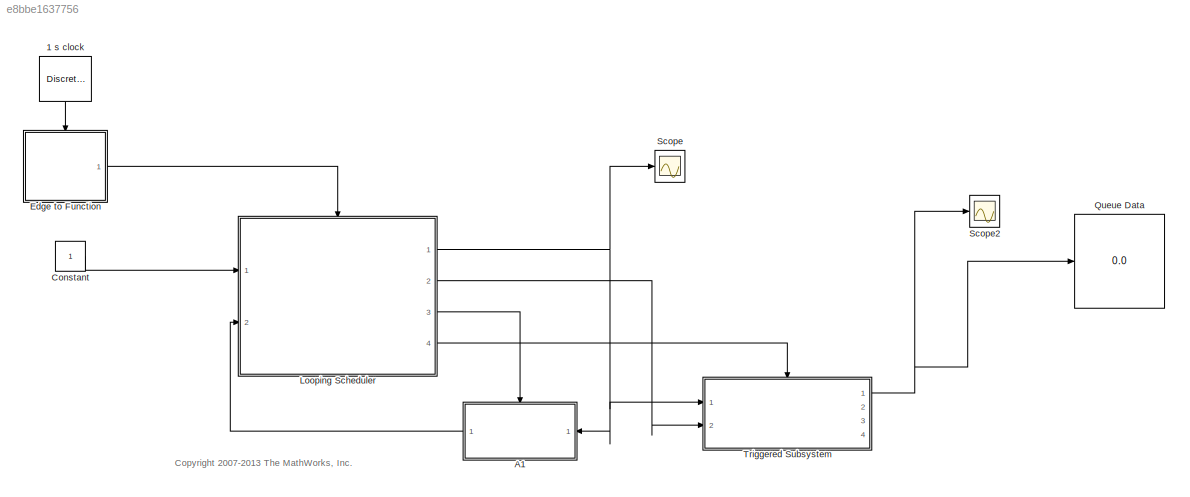
MODEL slx_e8bbe1637756
KIND model
CONFIG AbsTol = auto
CONFIG EnableMultiTasking = on
CONFIG FixedStep = auto
CONFIG MaxStep = auto
CONFIG MinStep = auto
CONFIG RelTol = 1e-3
CONFIG SampleTimeConstraint = Unconstrained
CONFIG Solver = FixedStepDiscrete
CONFIG SolverName = FixedStepDiscrete
CONFIG StartTime = 0.0
CONFIG StopTime = 10
WORKSPACE source: MAT-file member
WORKSPACE deltat = 0.001
BLOCK [DiscretePulseGenerator] 1 s clock
  Period = 1
  Ports = [0, 1]
  PulseType = Time based
  PulseWidth = 10
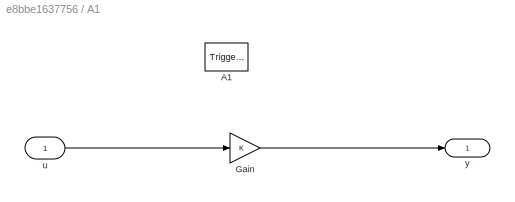
BLOCK [SubSystem] A1
  Ports = [1, 1, 0, 1]
  RequestExecContextInheritance = off
  TreatAsAtomicUnit = on
BLOCK [TriggerPort] A1/A1
  Ports = []
  StatesWhenEnabling = held
  TriggerType = function-call
  VariantControl = Variant
BLOCK [Gain] A1/Gain
  OutDataTypeStr = Inherit: Inherit via internal rule
  ParamDataTypeStr = Inherit: Inherit via internal rule
  SaturateOnIntegerOverflow = off
BLOCK [Inport] A1/u
  IconDisplay = Port number
BLOCK [Outport] A1/y
  IconDisplay = Port number
BLOCK [Constant] Constant
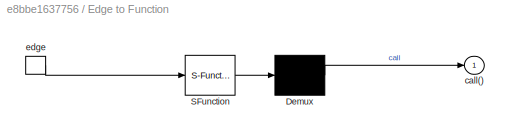
BLOCK [SubSystem] Edge to Function 
  ErrorFcn = Stateflow.Translate.translate
  PermitHierarchicalResolution = ExplicitOnly
  Ports = [0, 1, 0, 1]
  RequestExecContextInheritance = off
  SFBlockType = Chart
  TreatAsAtomicUnit = on
BLOCK [Demux] Edge to Function / Demux 
  Outputs = 1
  Ports = [1, 1]
BLOCK [S-Function] Edge to Function / SFunction 
  EnableBusSupport = on
  FunctionName = sf_sfun
  PortCounts = [1 1]
  Ports = [1, 1]
  SFcnIsStateOwnerBlock = off
  SFunctionDeploymentMode = off
  Tag = Stateflow S-Function queuetest_third 2
BLOCK [Outport] Edge to Function /call()
  IconDisplay = Port number
BLOCK [TriggerPort] Edge to Function /edge
  Ports = [0, 1]
  ShowOutputPort = on
  VariantControl = Variant
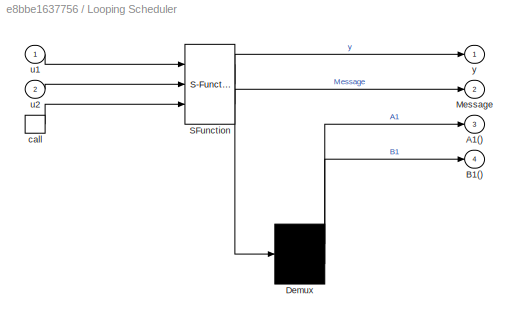
BLOCK [SubSystem] Looping Scheduler
  ErrorFcn = Stateflow.Translate.translate
  PermitHierarchicalResolution = ExplicitOnly
  Ports = [2, 4, 0, 1]
  RequestExecContextInheritance = off
  SFBlockType = Chart
  TreatAsAtomicUnit = on
BLOCK [Demux] Looping Scheduler/ Demux 
  Outputs = 2
  Ports = [1, 2]
BLOCK [S-Function] Looping Scheduler/ SFunction 
  EnableBusSupport = on
  FunctionName = sf_sfun
  PortCounts = [3 3]
  Ports = [3, 3]
  SFcnIsStateOwnerBlock = off
  SFunctionDeploymentMode = off
  Tag = Stateflow S-Function queuetest_third 1
BLOCK [Outport] Looping Scheduler/A1()
  IconDisplay = Port number
  Port = 3
BLOCK [Outport] Looping Scheduler/B1()
  IconDisplay = Port number
  Port = 4
BLOCK [Outport] Looping Scheduler/Message
  IconDisplay = Port number
  Port = 2
BLOCK [TriggerPort] Looping Scheduler/call
  Ports = [0, 1]
  ShowOutputPort = on
  TriggerType = function-call
  VariantControl = Variant
BLOCK [Inport] Looping Scheduler/u1
  IconDisplay = Port number
BLOCK [Inport] Looping Scheduler/u2
  IconDisplay = Port number
  Port = 2
BLOCK [Outport] Looping Scheduler/y
  IconDisplay = Port number
BLOCK [Display] Queue Data
  Decimation = 1
  Ports = [1]
BLOCK [Scope] Scope
  Floating = off
  NumInputPorts = 1
  Ports = [1]
  ScopeSpecificationString = Simulink.scopes.TimeScopeBlockCfg('CurrentConfiguration', extmgr.ConfigurationSet(extmgr.Configuration('Core','General UI',true),extmgr.Configuration('Core','Source UI',true),extmgr.Configuration('Sources','WiredSimulink',true,'DataLoggingSaveFormat','StructureWithTime','DataLoggingLimitDataPoints',true,'DataLoggingDecimation','1'),extmgr.Configuration('Visuals','Time Domain',true,'SerializedDispl...<+1759ch>
BLOCK [Scope] Scope2
  Floating = off
  NumInputPorts = 1
  Ports = [1]
  ScopeSpecificationString = Simulink.scopes.TimeScopeBlockCfg('CurrentConfiguration', extmgr.ConfigurationSet(extmgr.Configuration('Core','General UI',true),extmgr.Configuration('Core','Source UI',true),extmgr.Configuration('Sources','WiredSimulink',true,'DataLoggingVariableName','ScopeData1'),extmgr.Configuration('Visuals','Time Domain',true,'SerializedDisplays',{struct('MinYLimReal','-1.00000','MaxYLimReal','1.00000','YLab...<+1380ch>
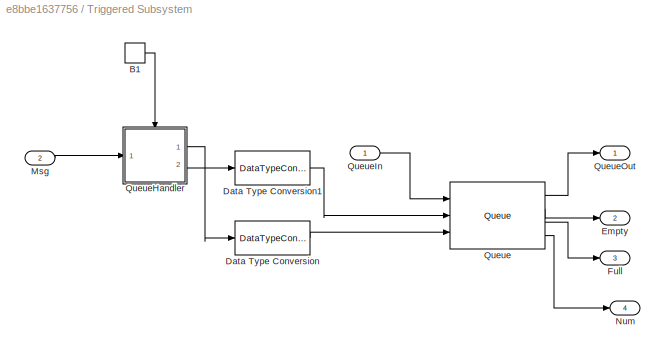
BLOCK [SubSystem] Triggered Subsystem
  Ports = [2, 4, 0, 1]
  RequestExecContextInheritance = off
  TreatAsAtomicUnit = on
BLOCK [TriggerPort] Triggered Subsystem/B1
  OutputDataType = int8
  PortDimensions = 1
  Ports = [0, 1]
  ShowOutputPort = on
  StatesWhenEnabling = held
  TriggerType = function-call
  VariantControl = Variant
BLOCK [DataTypeConversion] Triggered Subsystem/Data Type Conversion
  OutDataTypeStr = double
  RndMeth = Floor
  SaturateOnIntegerOverflow = off
BLOCK [DataTypeConversion] Triggered Subsystem/Data Type Conversion1
  OutDataTypeStr = double
  RndMeth = Floor
  SaturateOnIntegerOverflow = off
BLOCK [Outport] Triggered Subsystem/Empty
  IconDisplay = Port number
  OutDataTypeStr = boolean
  Port = 2
BLOCK [Outport] Triggered Subsystem/Full
  IconDisplay = Port number
  OutDataTypeStr = boolean
  Port = 3
BLOCK [Inport] Triggered Subsystem/Msg
  IconDisplay = Port number
  OutDataTypeStr = double
  Port = 2
BLOCK [Outport] Triggered Subsystem/Num
  IconDisplay = Port number
  OutDataTypeStr = double
  Port = 4
BLOCK [Reference] Triggered Subsystem/Queue  REF=dspbuff3/Queue
  Ports = [3, 4]
  SourceBlock = dspbuff3/Queue
  SourceProductBaseCode = DS
  SourceProductName = DSP System Toolbox
  SourceType = Queue
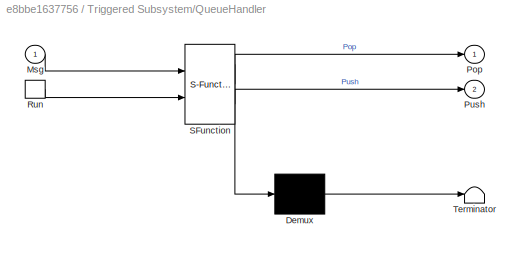
BLOCK [SubSystem] Triggered Subsystem/QueueHandler
  ErrorFcn = Stateflow.Translate.translate
  PermitHierarchicalResolution = ExplicitOnly
  Ports = [1, 2, 0, 1]
  RequestExecContextInheritance = off
  SFBlockType = Chart
  TreatAsAtomicUnit = on
BLOCK [Demux] Triggered Subsystem/QueueHandler/ Demux 
  Outputs = 1
  Ports = [1, 1]
BLOCK [S-Function] Triggered Subsystem/QueueHandler/ SFunction 
  EnableBusSupport = on
  FunctionName = sf_sfun
  PortCounts = [2 3]
  Ports = [2, 3]
  SFcnIsStateOwnerBlock = off
  SFunctionDeploymentMode = off
  Tag = Stateflow S-Function queuetest_third 3
BLOCK [Terminator] Triggered Subsystem/QueueHandler/ Terminator 
BLOCK [Inport] Triggered Subsystem/QueueHandler/Msg
  IconDisplay = Port number
BLOCK [Outport] Triggered Subsystem/QueueHandler/Pop
  IconDisplay = Port number
BLOCK [Outport] Triggered Subsystem/QueueHandler/Push
  IconDisplay = Port number
  Port = 2
BLOCK [TriggerPort] Triggered Subsystem/QueueHandler/Run
  Ports = [0, 1]
  ShowOutputPort = on
  StatesWhenEnabling = held
  TriggerType = either
  VariantControl = (inherit)
BLOCK [Inport] Triggered Subsystem/QueueIn
  IconDisplay = Port number
  OutDataTypeStr = double
  VarSizeSig = No
BLOCK [Outport] Triggered Subsystem/QueueOut
  IconDisplay = Port number
  OutDataTypeStr = double
ANNOTATION (root): <copyright redacted>
LINE 1 s clock:1 -> Edge to Function :trigger
LINE A1/Gain:1 -> A1/y:1
LINE A1/u:1 -> A1/Gain:1
LINE A1:1 -> Looping Scheduler:2
LINE Constant:1 -> Looping Scheduler:1
LINE Edge to Function :1 -> Looping Scheduler:trigger
NET Looping Scheduler:1 -> A1:1, Scope:1, Triggered Subsystem:1
LINE Looping Scheduler:2 -> Triggered Subsystem:2
LINE Looping Scheduler:3 -> A1:trigger
LINE Looping Scheduler:4 -> Triggered Subsystem:trigger
LINE Triggered Subsystem/B1:1 -> Triggered Subsystem/QueueHandler:trigger
LINE Triggered Subsystem/Data Type Conversion1:1 -> Triggered Subsystem/Queue:2
LINE Triggered Subsystem/Data Type Conversion:1 -> Triggered Subsystem/Queue:3
LINE Triggered Subsystem/Msg:1 -> Triggered Subsystem/QueueHandler:1
LINE Triggered Subsystem/Queue:1 -> Triggered Subsystem/QueueOut:1
LINE Triggered Subsystem/Queue:2 -> Triggered Subsystem/Empty:1
LINE Triggered Subsystem/Queue:3 -> Triggered Subsystem/Full:1
LINE Triggered Subsystem/Queue:4 -> Triggered Subsystem/Num:1
LINE Triggered Subsystem/QueueHandler:1 -> Triggered Subsystem/Data Type Conversion:1
LINE Triggered Subsystem/QueueHandler:2 -> Triggered Subsystem/Data Type Conversion1:1
LINE Triggered Subsystem/QueueIn:1 -> Triggered Subsystem/Queue:1
NET Triggered Subsystem:1 -> Queue Data:1, Scope2:1
note: NET lines group one-source signal fan-out (src -> all destinations, sorted); 1:1 wires keep LINE
CHART Looping
Scheduler states=0 transitions=4
CHART Edge to
Function  states=0 transitions=1
CHART Triggered
Subsystem/QueueHandler states=0 transitions=10
